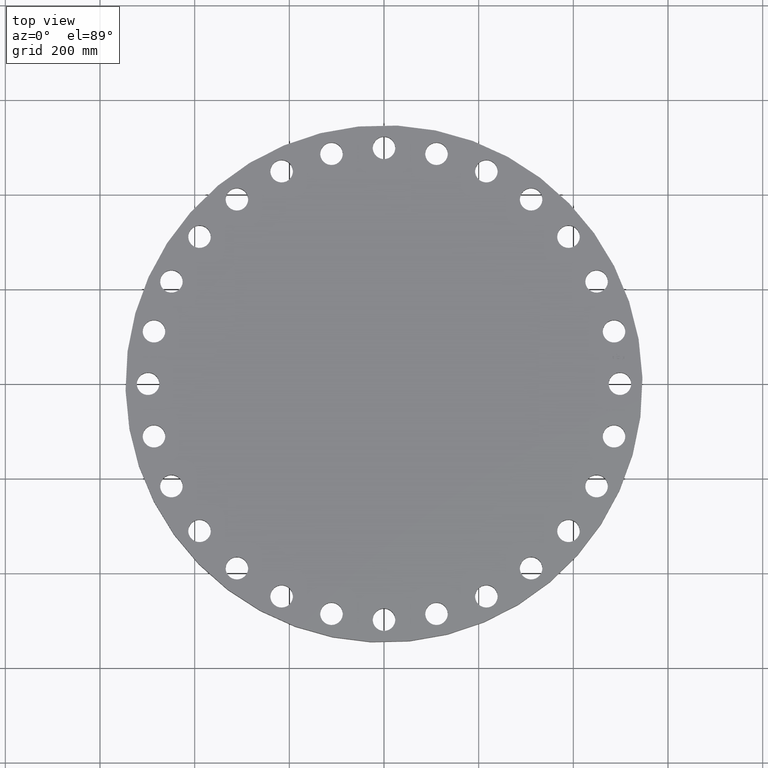
[diagram: clean part render]
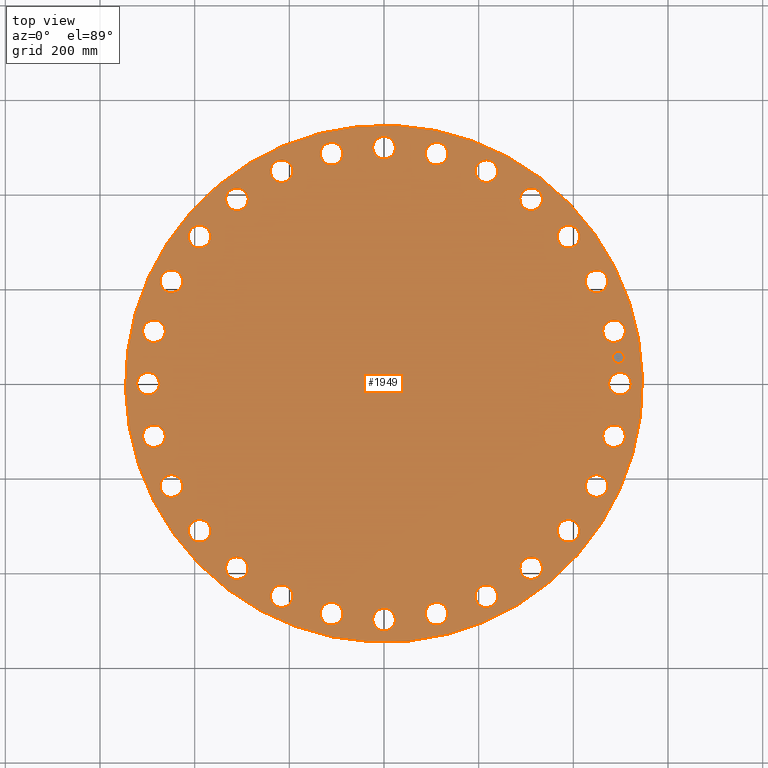
[diagram: same view with one face highlighted and labeled with its STEP entity id]
A machine part, top view. The second image highlights one B-rep face of the part: STEP entity #1949.
In plain terms, the highlighted planar face has unit normal (0, 0, -1).
Its self-contained STEP definition (entity closure, byte-faithful):
#65=AXIS2_PLACEMENT_3D('Circle Axis2P3D',#63,#64,$) ;
#82=AXIS2_PLACEMENT_3D('Circle Axis2P3D',#80,#81,$) ;
#115=AXIS2_PLACEMENT_3D('Circle Axis2P3D',#113,#114,$) ;
#139=AXIS2_PLACEMENT_3D('Circle Axis2P3D',#137,#138,$) ;
#670=AXIS2_PLACEMENT_3D('Circle Axis2P3D',#668,#669,$) ;
#682=AXIS2_PLACEMENT_3D('Circle Axis2P3D',#680,#681,$) ;
#713=AXIS2_PLACEMENT_3D('Circle Axis2P3D',#711,#712,$) ;
#725=AXIS2_PLACEMENT_3D('Circle Axis2P3D',#723,#724,$) ;
#756=AXIS2_PLACEMENT_3D('Circle Axis2P3D',#754,#755,$) ;
#768=AXIS2_PLACEMENT_3D('Circle Axis2P3D',#766,#767,$) ;
#799=AXIS2_PLACEMENT_3D('Circle Axis2P3D',#797,#798,$) ;
#811=AXIS2_PLACEMENT_3D('Circle Axis2P3D',#809,#810,$) ;
#842=AXIS2_PLACEMENT_3D('Circle Axis2P3D',#840,#841,$) ;
#854=AXIS2_PLACEMENT_3D('Circle Axis2P3D',#852,#853,$) ;
#885=AXIS2_PLACEMENT_3D('Circle Axis2P3D',#883,#884,$) ;
#897=AXIS2_PLACEMENT_3D('Circle Axis2P3D',#895,#896,$) ;
#928=AXIS2_PLACEMENT_3D('Circle Axis2P3D',#926,#927,$) ;
#940=AXIS2_PLACEMENT_3D('Circle Axis2P3D',#938,#939,$) ;
#971=AXIS2_PLACEMENT_3D('Circle Axis2P3D',#969,#970,$) ;
#983=AXIS2_PLACEMENT_3D('Circle Axis2P3D',#981,#982,$) ;
#1014=AXIS2_PLACEMENT_3D('Circle Axis2P3D',#1012,#1013,$) ;
#1026=AXIS2_PLACEMENT_3D('Circle Axis2P3D',#1024,#1025,$) ;
#1057=AXIS2_PLACEMENT_3D('Circle Axis2P3D',#1055,#1056,$) ;
#1069=AXIS2_PLACEMENT_3D('Circle Axis2P3D',#1067,#1068,$) ;
#1100=AXIS2_PLACEMENT_3D('Circle Axis2P3D',#1098,#1099,$) ;
#1112=AXIS2_PLACEMENT_3D('Circle Axis2P3D',#1110,#1111,$) ;
#1143=AXIS2_PLACEMENT_3D('Circle Axis2P3D',#1141,#1142,$) ;
#1155=AXIS2_PLACEMENT_3D('Circle Axis2P3D',#1153,#1154,$) ;
#1186=AXIS2_PLACEMENT_3D('Circle Axis2P3D',#1184,#1185,$) ;
#1198=AXIS2_PLACEMENT_3D('Circle Axis2P3D',#1196,#1197,$) ;
#1229=AXIS2_PLACEMENT_3D('Circle Axis2P3D',#1227,#1228,$) ;
#1241=AXIS2_PLACEMENT_3D('Circle Axis2P3D',#1239,#1240,$) ;
#1272=AXIS2_PLACEMENT_3D('Circle Axis2P3D',#1270,#1271,$) ;
#1284=AXIS2_PLACEMENT_3D('Circle Axis2P3D',#1282,#1283,$) ;
#1315=AXIS2_PLACEMENT_3D('Circle Axis2P3D',#1313,#1314,$) ;
#1327=AXIS2_PLACEMENT_3D('Circle Axis2P3D',#1325,#1326,$) ;
#1358=AXIS2_PLACEMENT_3D('Circle Axis2P3D',#1356,#1357,$) ;
#1370=AXIS2_PLACEMENT_3D('Circle Axis2P3D',#1368,#1369,$) ;
#1401=AXIS2_PLACEMENT_3D('Circle Axis2P3D',#1399,#1400,$) ;
#1413=AXIS2_PLACEMENT_3D('Circle Axis2P3D',#1411,#1412,$) ;
#1444=AXIS2_PLACEMENT_3D('Circle Axis2P3D',#1442,#1443,$) ;
#1456=AXIS2_PLACEMENT_3D('Circle Axis2P3D',#1454,#1455,$) ;
#1487=AXIS2_PLACEMENT_3D('Circle Axis2P3D',#1485,#1486,$) ;
#1499=AXIS2_PLACEMENT_3D('Circle Axis2P3D',#1497,#1498,$) ;
#1530=AXIS2_PLACEMENT_3D('Circle Axis2P3D',#1528,#1529,$) ;
#1542=AXIS2_PLACEMENT_3D('Circle Axis2P3D',#1540,#1541,$) ;
#1573=AXIS2_PLACEMENT_3D('Circle Axis2P3D',#1571,#1572,$) ;
#1585=AXIS2_PLACEMENT_3D('Circle Axis2P3D',#1583,#1584,$) ;
#1616=AXIS2_PLACEMENT_3D('Circle Axis2P3D',#1614,#1615,$) ;
#1628=AXIS2_PLACEMENT_3D('Circle Axis2P3D',#1626,#1627,$) ;
#1659=AXIS2_PLACEMENT_3D('Circle Axis2P3D',#1657,#1658,$) ;
#1671=AXIS2_PLACEMENT_3D('Circle Axis2P3D',#1669,#1670,$) ;
#1702=AXIS2_PLACEMENT_3D('Circle Axis2P3D',#1700,#1701,$) ;
#1714=AXIS2_PLACEMENT_3D('Circle Axis2P3D',#1712,#1713,$) ;
#1745=AXIS2_PLACEMENT_3D('Circle Axis2P3D',#1743,#1744,$) ;
#1757=AXIS2_PLACEMENT_3D('Circle Axis2P3D',#1755,#1756,$) ;
#1788=AXIS2_PLACEMENT_3D('Circle Axis2P3D',#1786,#1787,$) ;
#1800=AXIS2_PLACEMENT_3D('Circle Axis2P3D',#1798,#1799,$) ;
#1813=AXIS2_PLACEMENT_3D('Plane Axis2P3D',#1810,#1811,#1812) ;
#1933=AXIS2_PLACEMENT_3D('Circle Axis2P3D',#1931,#1932,$) ;
#1942=AXIS2_PLACEMENT_3D('Circle Axis2P3D',#1940,#1941,$) ;
#46=CARTESIAN_POINT('Vertex',(18.8000723919,0.45066000629,3.00000000001)) ;
#60=CARTESIAN_POINT('Vertex',(20.4499276083,-0.45066000629,3.00000000001)) ;
#63=CARTESIAN_POINT('Axis2P3D Location',(19.6250000001,0.,3.00000000001)) ;
#80=CARTESIAN_POINT('Axis2P3D Location',(19.6250000001,0.,3.00000000001)) ;
#110=CARTESIAN_POINT('Vertex',(10.30764908,18.8680250807,3.00000000001)) ;
#113=CARTESIAN_POINT('Axis2P3D Location',(0.,0.,3.00000000001)) ;
#117=CARTESIAN_POINT('Vertex',(-10.30764908,-18.8680250807,3.00000000001)) ;
#137=CARTESIAN_POINT('Axis2P3D Location',(0.,0.,3.00000000001)) ;
#658=CARTESIAN_POINT('Vertex',(-18.4289966114,3.74404864806,3.00000000001)) ;
#665=CARTESIAN_POINT('Vertex',(-19.8369239419,4.98989800976,3.00000000001)) ;
#668=CARTESIAN_POINT('Axis2P3D Location',(-19.1329602766,4.36697332891,3.00000000001)) ;
#680=CARTESIAN_POINT('Axis2P3D Location',(-19.1329602766,4.36697332891,3.00000000001)) ;
#701=CARTESIAN_POINT('Vertex',(17.133813988,-7.7510150694,3.00000000001)) ;
#708=CARTESIAN_POINT('Vertex',(18.2292140773,-9.27892169103,3.00000000001)) ;
#711=CARTESIAN_POINT('Axis2P3D Location',(17.6815140327,-8.51496838022,3.00000000001)) ;
#723=CARTESIAN_POINT('Axis2P3D Location',(17.6815140327,-8.51496838022,3.00000000001)) ;
#744=CARTESIAN_POINT('Vertex',(-17.133813988,7.7510150694,3.00000000001)) ;
#751=CARTESIAN_POINT('Vertex',(-18.2292140773,9.27892169103,3.00000000001)) ;
#754=CARTESIAN_POINT('Axis2P3D Location',(-17.6815140327,8.51496838022,3.00000000001)) ;
#766=CARTESIAN_POINT('Axis2P3D Location',(-17.6815140327,8.51496838022,3.00000000001)) ;
#787=CARTESIAN_POINT('Vertex',(14.9794703867,-11.3693132297,3.00000000001)) ;
#794=CARTESIAN_POINT('Vertex',(15.7074153003,-13.1026614933,3.00000000001)) ;
#797=CARTESIAN_POINT('Axis2P3D Location',(15.3434428435,-12.2359873615,3.00000000001)) ;
#809=CARTESIAN_POINT('Axis2P3D Location',(15.3434428435,-12.2359873615,3.00000000001)) ;
#830=CARTESIAN_POINT('Vertex',(-14.9794703867,11.3693132297,3.00000000001)) ;
#837=CARTESIAN_POINT('Vertex',(-15.7074153003,13.1026614933,3.00000000001)) ;
#840=CARTESIAN_POINT('Axis2P3D Location',(-15.3434428435,12.2359873615,3.00000000001)) ;
#852=CARTESIAN_POINT('Axis2P3D Location',(-15.3434428435,12.2359873615,3.00000000001)) ;
#873=CARTESIAN_POINT('Vertex',(12.0739935914,-14.4175065506,3.00000000001)) ;
#880=CARTESIAN_POINT('Vertex',(12.3979811317,-16.2693791364,3.00000000001)) ;
#883=CARTESIAN_POINT('Axis2P3D Location',(12.2359873615,-15.3434428435,3.00000000001)) ;
#895=CARTESIAN_POINT('Axis2P3D Location',(12.2359873615,-15.3434428435,3.00000000001)) ;
#916=CARTESIAN_POINT('Vertex',(-12.0739935914,14.4175065506,3.00000000001)) ;
#923=CARTESIAN_POINT('Vertex',(-12.3979811317,16.2693791364,3.00000000001)) ;
#926=CARTESIAN_POINT('Axis2P3D Location',(-12.2359873615,15.3434428435,3.00000000001)) ;
#938=CARTESIAN_POINT('Axis2P3D Location',(-12.2359873615,15.3434428435,3.00000000001)) ;
#959=CARTESIAN_POINT('Vertex',(8.56307634075,-16.7427458908,3.00000000001)) ;
#966=CARTESIAN_POINT('Vertex',(8.46686041968,-18.6202821745,3.00000000001)) ;
#969=CARTESIAN_POINT('Axis2P3D Location',(8.51496838022,-17.6815140327,3.00000000001)) ;
#981=CARTESIAN_POINT('Axis2P3D Location',(8.51496838022,-17.6815140327,3.00000000001)) ;
#1002=CARTESIAN_POINT('Vertex',(-8.56307634075,16.7427458908,3.00000000001)) ;
#1009=CARTESIAN_POINT('Vertex',(-8.46686041968,18.6202821745,3.00000000001)) ;
#1012=CARTESIAN_POINT('Axis2P3D Location',(-8.51496838022,17.6815140327,3.00000000001)) ;
#1024=CARTESIAN_POINT('Axis2P3D Location',(-8.51496838022,17.6815140327,3.00000000001)) ;
#1045=CARTESIAN_POINT('Vertex',(4.62277068613,-18.2284340404,3.00000000001)) ;
#1052=CARTESIAN_POINT('Vertex',(4.11117597169,-20.0374865129,3.00000000001)) ;
#1055=CARTESIAN_POINT('Axis2P3D Location',(4.36697332891,-19.1329602766,3.00000000001)) ;
#1067=CARTESIAN_POINT('Axis2P3D Location',(4.36697332891,-19.1329602766,3.00000000001)) ;
#1088=CARTESIAN_POINT('Vertex',(-4.62277068613,18.2284340404,3.00000000001)) ;
#1095=CARTESIAN_POINT('Vertex',(-4.11117597169,20.0374865129,3.00000000001)) ;
#1098=CARTESIAN_POINT('Axis2P3D Location',(-4.36697332891,19.1329602766,3.00000000001)) ;
#1110=CARTESIAN_POINT('Axis2P3D Location',(-4.36697332891,19.1329602766,3.00000000001)) ;
#1131=CARTESIAN_POINT('Vertex',(0.45066000629,-18.8000723919,3.00000000001)) ;
#1138=CARTESIAN_POINT('Vertex',(-0.45066000629,-20.4499276083,3.00000000001)) ;
#1141=CARTESIAN_POINT('Axis2P3D Location',(3.32138016693E-015,-19.6250000001,3.00000000001)) ;
#1153=CARTESIAN_POINT('Axis2P3D Location',(3.32138016693E-015,-19.6250000001,3.00000000001)) ;
#1174=CARTESIAN_POINT('Vertex',(-0.45066000629,18.8000723919,3.00000000001)) ;
#1181=CARTESIAN_POINT('Vertex',(0.45066000629,20.4499276083,3.00000000001)) ;
#1184=CARTESIAN_POINT('Axis2P3D Location',(-3.605054015E-015,19.6250000001,3.00000000001)) ;
#1196=CARTESIAN_POINT('Axis2P3D Location',(-3.605054015E-015,19.6250000001,3.00000000001)) ;
#1217=CARTESIAN_POINT('Vertex',(-3.74404864806,-18.4289966114,3.00000000001)) ;
#1224=CARTESIAN_POINT('Vertex',(-4.98989800976,-19.8369239419,3.00000000001)) ;
#1227=CARTESIAN_POINT('Axis2P3D Location',(-4.36697332891,-19.1329602766,3.00000000001)) ;
#1239=CARTESIAN_POINT('Axis2P3D Location',(-4.36697332891,-19.1329602766,3.00000000001)) ;
#1260=CARTESIAN_POINT('Vertex',(3.74404864806,18.4289966114,3.00000000001)) ;
#1267=CARTESIAN_POINT('Vertex',(4.98989800976,19.8369239419,3.00000000001)) ;
#1270=CARTESIAN_POINT('Axis2P3D Location',(4.36697332891,19.1329602766,3.00000000001)) ;
#1282=CARTESIAN_POINT('Axis2P3D Location',(4.36697332891,19.1329602766,3.00000000001)) ;
#1303=CARTESIAN_POINT('Vertex',(-7.7510150694,-17.133813988,3.00000000001)) ;
#1310=CARTESIAN_POINT('Vertex',(-9.27892169103,-18.2292140773,3.00000000001)) ;
#1313=CARTESIAN_POINT('Axis2P3D Location',(-8.51496838022,-17.6815140327,3.00000000001)) ;
#1325=CARTESIAN_POINT('Axis2P3D Location',(-8.51496838022,-17.6815140327,3.00000000001)) ;
#1346=CARTESIAN_POINT('Vertex',(7.7510150694,17.133813988,3.00000000001)) ;
#1353=CARTESIAN_POINT('Vertex',(9.27892169103,18.2292140773,3.00000000001)) ;
#1356=CARTESIAN_POINT('Axis2P3D Location',(8.51496838022,17.6815140327,3.00000000001)) ;
#1368=CARTESIAN_POINT('Axis2P3D Location',(8.51496838022,17.6815140327,3.00000000001)) ;
#1389=CARTESIAN_POINT('Vertex',(-11.3693132297,-14.9794703867,3.00000000001)) ;
#1396=CARTESIAN_POINT('Vertex',(-13.1026614933,-15.7074153003,3.00000000001)) ;
#1399=CARTESIAN_POINT('Axis2P3D Location',(-12.2359873615,-15.3434428435,3.00000000001)) ;
#1411=CARTESIAN_POINT('Axis2P3D Location',(-12.2359873615,-15.3434428435,3.00000000001)) ;
#1432=CARTESIAN_POINT('Vertex',(11.3693132297,14.9794703867,3.00000000001)) ;
#1439=CARTESIAN_POINT('Vertex',(13.1026614933,15.7074153003,3.00000000001)) ;
#1442=CARTESIAN_POINT('Axis2P3D Location',(12.2359873615,15.3434428435,3.00000000001)) ;
#1454=CARTESIAN_POINT('Axis2P3D Location',(12.2359873615,15.3434428435,3.00000000001)) ;
#1475=CARTESIAN_POINT('Vertex',(-14.4175065506,-12.0739935914,3.00000000001)) ;
#1482=CARTESIAN_POINT('Vertex',(-16.2693791364,-12.3979811317,3.00000000001)) ;
#1485=CARTESIAN_POINT('Axis2P3D Location',(-15.3434428435,-12.2359873615,3.00000000001)) ;
#1497=CARTESIAN_POINT('Axis2P3D Location',(-15.3434428435,-12.2359873615,3.00000000001)) ;
#1518=CARTESIAN_POINT('Vertex',(14.4175065506,12.0739935914,3.00000000001)) ;
#1525=CARTESIAN_POINT('Vertex',(16.2693791364,12.3979811317,3.00000000001)) ;
#1528=CARTESIAN_POINT('Axis2P3D Location',(15.3434428435,12.2359873615,3.00000000001)) ;
#1540=CARTESIAN_POINT('Axis2P3D Location',(15.3434428435,12.2359873615,3.00000000001)) ;
#1561=CARTESIAN_POINT('Vertex',(-16.7427458908,-8.56307634075,3.00000000001)) ;
#1568=CARTESIAN_POINT('Vertex',(-18.6202821745,-8.46686041968,3.00000000001)) ;
#1571=CARTESIAN_POINT('Axis2P3D Location',(-17.6815140327,-8.51496838022,3.00000000001)) ;
#1583=CARTESIAN_POINT('Axis2P3D Location',(-17.6815140327,-8.51496838022,3.00000000001)) ;
#1604=CARTESIAN_POINT('Vertex',(16.7427458908,8.56307634075,3.00000000001)) ;
#1611=CARTESIAN_POINT('Vertex',(18.6202821745,8.46686041968,3.00000000001)) ;
#1614=CARTESIAN_POINT('Axis2P3D Location',(17.6815140327,8.51496838022,3.00000000001)) ;
#1626=CARTESIAN_POINT('Axis2P3D Location',(17.6815140327,8.51496838022,3.00000000001)) ;
#1647=CARTESIAN_POINT('Vertex',(-18.2284340404,-4.62277068613,3.00000000001)) ;
#1654=CARTESIAN_POINT('Vertex',(-20.0374865129,-4.11117597169,3.00000000001)) ;
#1657=CARTESIAN_POINT('Axis2P3D Location',(-19.1329602766,-4.36697332891,3.00000000001)) ;
#1669=CARTESIAN_POINT('Axis2P3D Location',(-19.1329602766,-4.36697332891,3.00000000001)) ;
#1690=CARTESIAN_POINT('Vertex',(18.2284340404,4.62277068613,3.00000000001)) ;
#1697=CARTESIAN_POINT('Vertex',(20.0374865129,4.11117597169,3.00000000001)) ;
#1700=CARTESIAN_POINT('Axis2P3D Location',(19.1329602766,4.36697332891,3.00000000001)) ;
#1712=CARTESIAN_POINT('Axis2P3D Location',(19.1329602766,4.36697332891,3.00000000001)) ;
#1733=CARTESIAN_POINT('Vertex',(-18.8000723919,-0.45066000629,3.00000000001)) ;
#1740=CARTESIAN_POINT('Vertex',(-20.4499276083,0.45066000629,3.00000000001)) ;
#1743=CARTESIAN_POINT('Axis2P3D Location',(-19.6250000001,-1.11186200867E-014,3.00000000001)) ;
#1755=CARTESIAN_POINT('Axis2P3D Location',(-19.6250000001,-1.11186200867E-014,3.00000000001)) ;
#1776=CARTESIAN_POINT('Vertex',(18.4289966114,-3.74404864806,3.00000000001)) ;
#1783=CARTESIAN_POINT('Vertex',(19.8369239419,-4.98989800976,3.00000000001)) ;
#1786=CARTESIAN_POINT('Axis2P3D Location',(19.1329602766,-4.36697332891,3.00000000001)) ;
#1798=CARTESIAN_POINT('Axis2P3D Location',(19.1329602766,-4.36697332891,3.00000000001)) ;
#1810=CARTESIAN_POINT('Axis2P3D Location',(0.,21.5000000001,3.00000000001)) ;
#1931=CARTESIAN_POINT('Axis2P3D Location',(19.5016021192,2.19730284354,3.00000000001)) ;
#1935=CARTESIAN_POINT('Vertex',(19.4456198812,2.69415894848,3.00000000001)) ;
#1937=CARTESIAN_POINT('Vertex',(19.5575843573,1.70044673859,3.00000000001)) ;
#1940=CARTESIAN_POINT('Axis2P3D Location',(19.5016021192,2.19730284354,3.00000000001)) ;
#64=DIRECTION('Axis2P3D Direction',(0.,-0.,-0.0393700787402)) ;
#81=DIRECTION('Axis2P3D Direction',(0.,-0.,-0.0393700787402)) ;
#114=DIRECTION('Axis2P3D Direction',(0.,0.,-0.0393700787402)) ;
#138=DIRECTION('Axis2P3D Direction',(0.,0.,-0.0393700787402)) ;
#669=DIRECTION('Axis2P3D Direction',(0.,0.,-0.0393700787402)) ;
#681=DIRECTION('Axis2P3D Direction',(0.,0.,-0.0393700787402)) ;
#712=DIRECTION('Axis2P3D Direction',(0.,-0.,-0.0393700787402)) ;
#724=DIRECTION('Axis2P3D Direction',(0.,-0.,-0.0393700787402)) ;
#755=DIRECTION('Axis2P3D Direction',(0.,0.,-0.0393700787402)) ;
#767=DIRECTION('Axis2P3D Direction',(0.,0.,-0.0393700787402)) ;
#798=DIRECTION('Axis2P3D Direction',(0.,-0.,-0.0393700787402)) ;
#810=DIRECTION('Axis2P3D Direction',(0.,-0.,-0.0393700787402)) ;
#841=DIRECTION('Axis2P3D Direction',(0.,0.,-0.0393700787402)) ;
#853=DIRECTION('Axis2P3D Direction',(0.,0.,-0.0393700787402)) ;
#884=DIRECTION('Axis2P3D Direction',(0.,-0.,-0.0393700787402)) ;
#896=DIRECTION('Axis2P3D Direction',(0.,-0.,-0.0393700787402)) ;
#927=DIRECTION('Axis2P3D Direction',(0.,0.,-0.0393700787402)) ;
#939=DIRECTION('Axis2P3D Direction',(0.,0.,-0.0393700787402)) ;
#970=DIRECTION('Axis2P3D Direction',(0.,-0.,-0.0393700787402)) ;
#982=DIRECTION('Axis2P3D Direction',(0.,-0.,-0.0393700787402)) ;
#1013=DIRECTION('Axis2P3D Direction',(0.,0.,-0.0393700787402)) ;
#1025=DIRECTION('Axis2P3D Direction',(0.,0.,-0.0393700787402)) ;
#1056=DIRECTION('Axis2P3D Direction',(0.,-0.,-0.0393700787402)) ;
#1068=DIRECTION('Axis2P3D Direction',(0.,-0.,-0.0393700787402)) ;
#1099=DIRECTION('Axis2P3D Direction',(0.,0.,-0.0393700787402)) ;
#1111=DIRECTION('Axis2P3D Direction',(0.,0.,-0.0393700787402)) ;
#1142=DIRECTION('Axis2P3D Direction',(0.,-0.,-0.0393700787402)) ;
#1154=DIRECTION('Axis2P3D Direction',(0.,-0.,-0.0393700787402)) ;
#1185=DIRECTION('Axis2P3D Direction',(0.,0.,-0.0393700787402)) ;
#1197=DIRECTION('Axis2P3D Direction',(0.,0.,-0.0393700787402)) ;
#1228=DIRECTION('Axis2P3D Direction',(-0.,0.,-0.0393700787402)) ;
#1240=DIRECTION('Axis2P3D Direction',(-0.,0.,-0.0393700787402)) ;
#1271=DIRECTION('Axis2P3D Direction',(0.,0.,-0.0393700787402)) ;
#1283=DIRECTION('Axis2P3D Direction',(0.,0.,-0.0393700787402)) ;
#1314=DIRECTION('Axis2P3D Direction',(-0.,0.,-0.0393700787402)) ;
#1326=DIRECTION('Axis2P3D Direction',(-0.,0.,-0.0393700787402)) ;
#1357=DIRECTION('Axis2P3D Direction',(0.,0.,-0.0393700787402)) ;
#1369=DIRECTION('Axis2P3D Direction',(0.,0.,-0.0393700787402)) ;
#1400=DIRECTION('Axis2P3D Direction',(-0.,0.,-0.0393700787402)) ;
#1412=DIRECTION('Axis2P3D Direction',(-0.,0.,-0.0393700787402)) ;
#1443=DIRECTION('Axis2P3D Direction',(0.,0.,-0.0393700787402)) ;
#1455=DIRECTION('Axis2P3D Direction',(0.,0.,-0.0393700787402)) ;
#1486=DIRECTION('Axis2P3D Direction',(-0.,0.,-0.0393700787402)) ;
#1498=DIRECTION('Axis2P3D Direction',(-0.,0.,-0.0393700787402)) ;
#1529=DIRECTION('Axis2P3D Direction',(0.,0.,-0.0393700787402)) ;
#1541=DIRECTION('Axis2P3D Direction',(0.,0.,-0.0393700787402)) ;
#1572=DIRECTION('Axis2P3D Direction',(-0.,0.,-0.0393700787402)) ;
#1584=DIRECTION('Axis2P3D Direction',(-0.,0.,-0.0393700787402)) ;
#1615=DIRECTION('Axis2P3D Direction',(0.,0.,-0.0393700787402)) ;
#1627=DIRECTION('Axis2P3D Direction',(0.,0.,-0.0393700787402)) ;
#1658=DIRECTION('Axis2P3D Direction',(-0.,0.,-0.0393700787402)) ;
#1670=DIRECTION('Axis2P3D Direction',(-0.,0.,-0.0393700787402)) ;
#1701=DIRECTION('Axis2P3D Direction',(0.,0.,-0.0393700787402)) ;
#1713=DIRECTION('Axis2P3D Direction',(0.,0.,-0.0393700787402)) ;
#1744=DIRECTION('Axis2P3D Direction',(-0.,0.,-0.0393700787402)) ;
#1756=DIRECTION('Axis2P3D Direction',(-0.,0.,-0.0393700787402)) ;
#1787=DIRECTION('Axis2P3D Direction',(0.,-0.,-0.0393700787402)) ;
#1799=DIRECTION('Axis2P3D Direction',(0.,-0.,-0.0393700787402)) ;
#1811=DIRECTION('Axis2P3D Direction',(0.,0.,-0.0393700787402)) ;
#1812=DIRECTION('Axis2P3D XDirection',(0.0393700787402,0.,0.)) ;
#1932=DIRECTION('Axis2P3D Direction',(0.,0.,-0.0393700787402)) ;
#1941=DIRECTION('Axis2P3D Direction',(0.,0.,-0.0393700787402)) ;
#1816=ORIENTED_EDGE('',*,*,#119,.F.) ;
#1817=ORIENTED_EDGE('',*,*,#141,.F.) ;
#1820=ORIENTED_EDGE('',*,*,#67,.T.) ;
#1821=ORIENTED_EDGE('',*,*,#84,.T.) ;
#1824=ORIENTED_EDGE('',*,*,#1802,.T.) ;
#1825=ORIENTED_EDGE('',*,*,#1790,.T.) ;
#1828=ORIENTED_EDGE('',*,*,#727,.T.) ;
#1829=ORIENTED_EDGE('',*,*,#715,.T.) ;
#1832=ORIENTED_EDGE('',*,*,#813,.T.) ;
#1833=ORIENTED_EDGE('',*,*,#801,.T.) ;
#1836=ORIENTED_EDGE('',*,*,#899,.T.) ;
#1837=ORIENTED_EDGE('',*,*,#887,.T.) ;
#1840=ORIENTED_EDGE('',*,*,#985,.T.) ;
#1841=ORIENTED_EDGE('',*,*,#973,.T.) ;
#1844=ORIENTED_EDGE('',*,*,#1071,.T.) ;
#1845=ORIENTED_EDGE('',*,*,#1059,.T.) ;
#1848=ORIENTED_EDGE('',*,*,#1157,.T.) ;
#1849=ORIENTED_EDGE('',*,*,#1145,.T.) ;
#1852=ORIENTED_EDGE('',*,*,#1243,.T.) ;
#1853=ORIENTED_EDGE('',*,*,#1231,.T.) ;
#1856=ORIENTED_EDGE('',*,*,#1329,.T.) ;
#1857=ORIENTED_EDGE('',*,*,#1317,.T.) ;
#1860=ORIENTED_EDGE('',*,*,#1415,.T.) ;
#1861=ORIENTED_EDGE('',*,*,#1403,.T.) ;
#1864=ORIENTED_EDGE('',*,*,#1501,.T.) ;
#1865=ORIENTED_EDGE('',*,*,#1489,.T.) ;
#1868=ORIENTED_EDGE('',*,*,#1587,.T.) ;
#1869=ORIENTED_EDGE('',*,*,#1575,.T.) ;
#1872=ORIENTED_EDGE('',*,*,#1673,.T.) ;
#1873=ORIENTED_EDGE('',*,*,#1661,.T.) ;
#1876=ORIENTED_EDGE('',*,*,#1759,.T.) ;
#1877=ORIENTED_EDGE('',*,*,#1747,.T.) ;
#1880=ORIENTED_EDGE('',*,*,#684,.T.) ;
#1881=ORIENTED_EDGE('',*,*,#672,.T.) ;
#1884=ORIENTED_EDGE('',*,*,#770,.T.) ;
#1885=ORIENTED_EDGE('',*,*,#758,.T.) ;
#1888=ORIENTED_EDGE('',*,*,#856,.T.) ;
#1889=ORIENTED_EDGE('',*,*,#844,.T.) ;
#1892=ORIENTED_EDGE('',*,*,#942,.T.) ;
#1893=ORIENTED_EDGE('',*,*,#930,.T.) ;
#1896=ORIENTED_EDGE('',*,*,#1028,.T.) ;
#1897=ORIENTED_EDGE('',*,*,#1016,.T.) ;
#1900=ORIENTED_EDGE('',*,*,#1114,.T.) ;
#1901=ORIENTED_EDGE('',*,*,#1102,.T.) ;
#1904=ORIENTED_EDGE('',*,*,#1200,.T.) ;
#1905=ORIENTED_EDGE('',*,*,#1188,.T.) ;
#1908=ORIENTED_EDGE('',*,*,#1286,.T.) ;
#1909=ORIENTED_EDGE('',*,*,#1274,.T.) ;
#1912=ORIENTED_EDGE('',*,*,#1372,.T.) ;
#1913=ORIENTED_EDGE('',*,*,#1360,.T.) ;
#1916=ORIENTED_EDGE('',*,*,#1458,.T.) ;
#1917=ORIENTED_EDGE('',*,*,#1446,.T.) ;
#1920=ORIENTED_EDGE('',*,*,#1544,.T.) ;
#1921=ORIENTED_EDGE('',*,*,#1532,.T.) ;
#1924=ORIENTED_EDGE('',*,*,#1630,.T.) ;
#1925=ORIENTED_EDGE('',*,*,#1618,.T.) ;
#1928=ORIENTED_EDGE('',*,*,#1716,.T.) ;
#1929=ORIENTED_EDGE('',*,*,#1704,.T.) ;
#1946=ORIENTED_EDGE('',*,*,#1939,.T.) ;
#1947=ORIENTED_EDGE('',*,*,#1944,.T.) ;
#1822=FACE_BOUND('',#1819,.T.) ;
#1826=FACE_BOUND('',#1823,.T.) ;
#1830=FACE_BOUND('',#1827,.T.) ;
#1834=FACE_BOUND('',#1831,.T.) ;
#1838=FACE_BOUND('',#1835,.T.) ;
#1842=FACE_BOUND('',#1839,.T.) ;
#1846=FACE_BOUND('',#1843,.T.) ;
#1850=FACE_BOUND('',#1847,.T.) ;
#1854=FACE_BOUND('',#1851,.T.) ;
#1858=FACE_BOUND('',#1855,.T.) ;
#1862=FACE_BOUND('',#1859,.T.) ;
#1866=FACE_BOUND('',#1863,.T.) ;
#1870=FACE_BOUND('',#1867,.T.) ;
#1874=FACE_BOUND('',#1871,.T.) ;
#1878=FACE_BOUND('',#1875,.T.) ;
#1882=FACE_BOUND('',#1879,.T.) ;
#1886=FACE_BOUND('',#1883,.T.) ;
#1890=FACE_BOUND('',#1887,.T.) ;
#1894=FACE_BOUND('',#1891,.T.) ;
#1898=FACE_BOUND('',#1895,.T.) ;
#1902=FACE_BOUND('',#1899,.T.) ;
#1906=FACE_BOUND('',#1903,.T.) ;
#1910=FACE_BOUND('',#1907,.T.) ;
#1914=FACE_BOUND('',#1911,.T.) ;
#1918=FACE_BOUND('',#1915,.T.) ;
#1922=FACE_BOUND('',#1919,.T.) ;
#1926=FACE_BOUND('',#1923,.T.) ;
#1930=FACE_BOUND('',#1927,.T.) ;
#1948=FACE_BOUND('',#1945,.T.) ;
#1949=ADVANCED_FACE('PartBody',(#1818,#1822,#1826,#1830,#1834,#1838,#1842,#1846,#1850,#1854,#1858,#1862,#1866,#1870,#1874,#1878,#1882,#1886,#1890,#1894,#1898,#1902,#1906,#1910,#1914,#1918,#1922,#1926,#1930,#1948),#1814,.F.) ;
#66=CIRCLE('generated circle',#65,0.940000000004) ;
#83=CIRCLE('generated circle',#82,0.940000000004) ;
#116=CIRCLE('generated circle',#115,21.5000000001) ;
#140=CIRCLE('generated circle',#139,21.5000000001) ;
#671=CIRCLE('generated circle',#670,0.940000000004) ;
#683=CIRCLE('generated circle',#682,0.940000000004) ;
#714=CIRCLE('generated circle',#713,0.940000000004) ;
#726=CIRCLE('generated circle',#725,0.940000000004) ;
#757=CIRCLE('generated circle',#756,0.940000000004) ;
#769=CIRCLE('generated circle',#768,0.940000000004) ;
#800=CIRCLE('generated circle',#799,0.940000000004) ;
#812=CIRCLE('generated circle',#811,0.940000000004) ;
#843=CIRCLE('generated circle',#842,0.940000000004) ;
#855=CIRCLE('generated circle',#854,0.940000000004) ;
#886=CIRCLE('generated circle',#885,0.940000000004) ;
#898=CIRCLE('generated circle',#897,0.940000000004) ;
#929=CIRCLE('generated circle',#928,0.940000000004) ;
#941=CIRCLE('generated circle',#940,0.940000000004) ;
#972=CIRCLE('generated circle',#971,0.940000000004) ;
#984=CIRCLE('generated circle',#983,0.940000000004) ;
#1015=CIRCLE('generated circle',#1014,0.940000000004) ;
#1027=CIRCLE('generated circle',#1026,0.940000000004) ;
#1058=CIRCLE('generated circle',#1057,0.940000000004) ;
#1070=CIRCLE('generated circle',#1069,0.940000000004) ;
#1101=CIRCLE('generated circle',#1100,0.940000000004) ;
#1113=CIRCLE('generated circle',#1112,0.940000000004) ;
#1144=CIRCLE('generated circle',#1143,0.940000000004) ;
#1156=CIRCLE('generated circle',#1155,0.940000000004) ;
#1187=CIRCLE('generated circle',#1186,0.940000000004) ;
#1199=CIRCLE('generated circle',#1198,0.940000000004) ;
#1230=CIRCLE('generated circle',#1229,0.940000000004) ;
#1242=CIRCLE('generated circle',#1241,0.940000000004) ;
#1273=CIRCLE('generated circle',#1272,0.940000000004) ;
#1285=CIRCLE('generated circle',#1284,0.940000000004) ;
#1316=CIRCLE('generated circle',#1315,0.940000000004) ;
#1328=CIRCLE('generated circle',#1327,0.940000000004) ;
#1359=CIRCLE('generated circle',#1358,0.940000000004) ;
#1371=CIRCLE('generated circle',#1370,0.940000000004) ;
#1402=CIRCLE('generated circle',#1401,0.940000000004) ;
#1414=CIRCLE('generated circle',#1413,0.940000000004) ;
#1445=CIRCLE('generated circle',#1444,0.940000000004) ;
#1457=CIRCLE('generated circle',#1456,0.940000000004) ;
#1488=CIRCLE('generated circle',#1487,0.940000000004) ;
#1500=CIRCLE('generated circle',#1499,0.940000000004) ;
#1531=CIRCLE('generated circle',#1530,0.940000000004) ;
#1543=CIRCLE('generated circle',#1542,0.940000000004) ;
#1574=CIRCLE('generated circle',#1573,0.940000000004) ;
#1586=CIRCLE('generated circle',#1585,0.940000000004) ;
#1617=CIRCLE('generated circle',#1616,0.940000000004) ;
#1629=CIRCLE('generated circle',#1628,0.940000000004) ;
#1660=CIRCLE('generated circle',#1659,0.940000000004) ;
#1672=CIRCLE('generated circle',#1671,0.940000000004) ;
#1703=CIRCLE('generated circle',#1702,0.940000000004) ;
#1715=CIRCLE('generated circle',#1714,0.940000000004) ;
#1746=CIRCLE('generated circle',#1745,0.940000000004) ;
#1758=CIRCLE('generated circle',#1757,0.940000000004) ;
#1789=CIRCLE('generated circle',#1788,0.940000000004) ;
#1801=CIRCLE('generated circle',#1800,0.940000000004) ;
#1934=CIRCLE('generated circle',#1933,0.500000000002) ;
#1943=CIRCLE('generated circle',#1942,0.500000000002) ;
#67=EDGE_CURVE('',#47,#61,#66,.T.) ;
#84=EDGE_CURVE('',#61,#47,#83,.T.) ;
#119=EDGE_CURVE('',#111,#118,#116,.T.) ;
#141=EDGE_CURVE('',#118,#111,#140,.T.) ;
#672=EDGE_CURVE('',#659,#666,#671,.T.) ;
#684=EDGE_CURVE('',#666,#659,#683,.T.) ;
#715=EDGE_CURVE('',#702,#709,#714,.T.) ;
#727=EDGE_CURVE('',#709,#702,#726,.T.) ;
#758=EDGE_CURVE('',#745,#752,#757,.T.) ;
#770=EDGE_CURVE('',#752,#745,#769,.T.) ;
#801=EDGE_CURVE('',#788,#795,#800,.T.) ;
#813=EDGE_CURVE('',#795,#788,#812,.T.) ;
#844=EDGE_CURVE('',#831,#838,#843,.T.) ;
#856=EDGE_CURVE('',#838,#831,#855,.T.) ;
#887=EDGE_CURVE('',#874,#881,#886,.T.) ;
#899=EDGE_CURVE('',#881,#874,#898,.T.) ;
#930=EDGE_CURVE('',#917,#924,#929,.T.) ;
#942=EDGE_CURVE('',#924,#917,#941,.T.) ;
#973=EDGE_CURVE('',#960,#967,#972,.T.) ;
#985=EDGE_CURVE('',#967,#960,#984,.T.) ;
#1016=EDGE_CURVE('',#1003,#1010,#1015,.T.) ;
#1028=EDGE_CURVE('',#1010,#1003,#1027,.T.) ;
#1059=EDGE_CURVE('',#1046,#1053,#1058,.T.) ;
#1071=EDGE_CURVE('',#1053,#1046,#1070,.T.) ;
#1102=EDGE_CURVE('',#1089,#1096,#1101,.T.) ;
#1114=EDGE_CURVE('',#1096,#1089,#1113,.T.) ;
#1145=EDGE_CURVE('',#1132,#1139,#1144,.T.) ;
#1157=EDGE_CURVE('',#1139,#1132,#1156,.T.) ;
#1188=EDGE_CURVE('',#1175,#1182,#1187,.T.) ;
#1200=EDGE_CURVE('',#1182,#1175,#1199,.T.) ;
#1231=EDGE_CURVE('',#1218,#1225,#1230,.T.) ;
#1243=EDGE_CURVE('',#1225,#1218,#1242,.T.) ;
#1274=EDGE_CURVE('',#1261,#1268,#1273,.T.) ;
#1286=EDGE_CURVE('',#1268,#1261,#1285,.T.) ;
#1317=EDGE_CURVE('',#1304,#1311,#1316,.T.) ;
#1329=EDGE_CURVE('',#1311,#1304,#1328,.T.) ;
#1360=EDGE_CURVE('',#1347,#1354,#1359,.T.) ;
#1372=EDGE_CURVE('',#1354,#1347,#1371,.T.) ;
#1403=EDGE_CURVE('',#1390,#1397,#1402,.T.) ;
#1415=EDGE_CURVE('',#1397,#1390,#1414,.T.) ;
#1446=EDGE_CURVE('',#1433,#1440,#1445,.T.) ;
#1458=EDGE_CURVE('',#1440,#1433,#1457,.T.) ;
#1489=EDGE_CURVE('',#1476,#1483,#1488,.T.) ;
#1501=EDGE_CURVE('',#1483,#1476,#1500,.T.) ;
#1532=EDGE_CURVE('',#1519,#1526,#1531,.T.) ;
#1544=EDGE_CURVE('',#1526,#1519,#1543,.T.) ;
#1575=EDGE_CURVE('',#1562,#1569,#1574,.T.) ;
#1587=EDGE_CURVE('',#1569,#1562,#1586,.T.) ;
#1618=EDGE_CURVE('',#1605,#1612,#1617,.T.) ;
#1630=EDGE_CURVE('',#1612,#1605,#1629,.T.) ;
#1661=EDGE_CURVE('',#1648,#1655,#1660,.T.) ;
#1673=EDGE_CURVE('',#1655,#1648,#1672,.T.) ;
#1704=EDGE_CURVE('',#1691,#1698,#1703,.T.) ;
#1716=EDGE_CURVE('',#1698,#1691,#1715,.T.) ;
#1747=EDGE_CURVE('',#1734,#1741,#1746,.T.) ;
#1759=EDGE_CURVE('',#1741,#1734,#1758,.T.) ;
#1790=EDGE_CURVE('',#1777,#1784,#1789,.T.) ;
#1802=EDGE_CURVE('',#1784,#1777,#1801,.T.) ;
#1939=EDGE_CURVE('',#1936,#1938,#1934,.T.) ;
#1944=EDGE_CURVE('',#1938,#1936,#1943,.T.) ;
#1815=EDGE_LOOP('',(#1816,#1817)) ;
#1819=EDGE_LOOP('',(#1820,#1821)) ;
#1823=EDGE_LOOP('',(#1824,#1825)) ;
#1827=EDGE_LOOP('',(#1828,#1829)) ;
#1831=EDGE_LOOP('',(#1832,#1833)) ;
#1835=EDGE_LOOP('',(#1836,#1837)) ;
#1839=EDGE_LOOP('',(#1840,#1841)) ;
#1843=EDGE_LOOP('',(#1844,#1845)) ;
#1847=EDGE_LOOP('',(#1848,#1849)) ;
#1851=EDGE_LOOP('',(#1852,#1853)) ;
#1855=EDGE_LOOP('',(#1856,#1857)) ;
#1859=EDGE_LOOP('',(#1860,#1861)) ;
#1863=EDGE_LOOP('',(#1864,#1865)) ;
#1867=EDGE_LOOP('',(#1868,#1869)) ;
#1871=EDGE_LOOP('',(#1872,#1873)) ;
#1875=EDGE_LOOP('',(#1876,#1877)) ;
#1879=EDGE_LOOP('',(#1880,#1881)) ;
#1883=EDGE_LOOP('',(#1884,#1885)) ;
#1887=EDGE_LOOP('',(#1888,#1889)) ;
#1891=EDGE_LOOP('',(#1892,#1893)) ;
#1895=EDGE_LOOP('',(#1896,#1897)) ;
#1899=EDGE_LOOP('',(#1900,#1901)) ;
#1903=EDGE_LOOP('',(#1904,#1905)) ;
#1907=EDGE_LOOP('',(#1908,#1909)) ;
#1911=EDGE_LOOP('',(#1912,#1913)) ;
#1915=EDGE_LOOP('',(#1916,#1917)) ;
#1919=EDGE_LOOP('',(#1920,#1921)) ;
#1923=EDGE_LOOP('',(#1924,#1925)) ;
#1927=EDGE_LOOP('',(#1928,#1929)) ;
#1945=EDGE_LOOP('',(#1946,#1947)) ;
#1818=FACE_OUTER_BOUND('',#1815,.T.) ;
#1814=PLANE('',#1813) ;
#47=VERTEX_POINT('',#46) ;
#61=VERTEX_POINT('',#60) ;
#111=VERTEX_POINT('',#110) ;
#118=VERTEX_POINT('',#117) ;
#659=VERTEX_POINT('',#658) ;
#666=VERTEX_POINT('',#665) ;
#702=VERTEX_POINT('',#701) ;
#709=VERTEX_POINT('',#708) ;
#745=VERTEX_POINT('',#744) ;
#752=VERTEX_POINT('',#751) ;
#788=VERTEX_POINT('',#787) ;
#795=VERTEX_POINT('',#794) ;
#831=VERTEX_POINT('',#830) ;
#838=VERTEX_POINT('',#837) ;
#874=VERTEX_POINT('',#873) ;
#881=VERTEX_POINT('',#880) ;
#917=VERTEX_POINT('',#916) ;
#924=VERTEX_POINT('',#923) ;
#960=VERTEX_POINT('',#959) ;
#967=VERTEX_POINT('',#966) ;
#1003=VERTEX_POINT('',#1002) ;
#1010=VERTEX_POINT('',#1009) ;
#1046=VERTEX_POINT('',#1045) ;
#1053=VERTEX_POINT('',#1052) ;
#1089=VERTEX_POINT('',#1088) ;
#1096=VERTEX_POINT('',#1095) ;
#1132=VERTEX_POINT('',#1131) ;
#1139=VERTEX_POINT('',#1138) ;
#1175=VERTEX_POINT('',#1174) ;
#1182=VERTEX_POINT('',#1181) ;
#1218=VERTEX_POINT('',#1217) ;
#1225=VERTEX_POINT('',#1224) ;
#1261=VERTEX_POINT('',#1260) ;
#1268=VERTEX_POINT('',#1267) ;
#1304=VERTEX_POINT('',#1303) ;
#1311=VERTEX_POINT('',#1310) ;
#1347=VERTEX_POINT('',#1346) ;
#1354=VERTEX_POINT('',#1353) ;
#1390=VERTEX_POINT('',#1389) ;
#1397=VERTEX_POINT('',#1396) ;
#1433=VERTEX_POINT('',#1432) ;
#1440=VERTEX_POINT('',#1439) ;
#1476=VERTEX_POINT('',#1475) ;
#1483=VERTEX_POINT('',#1482) ;
#1519=VERTEX_POINT('',#1518) ;
#1526=VERTEX_POINT('',#1525) ;
#1562=VERTEX_POINT('',#1561) ;
#1569=VERTEX_POINT('',#1568) ;
#1605=VERTEX_POINT('',#1604) ;
#1612=VERTEX_POINT('',#1611) ;
#1648=VERTEX_POINT('',#1647) ;
#1655=VERTEX_POINT('',#1654) ;
#1691=VERTEX_POINT('',#1690) ;
#1698=VERTEX_POINT('',#1697) ;
#1734=VERTEX_POINT('',#1733) ;
#1741=VERTEX_POINT('',#1740) ;
#1777=VERTEX_POINT('',#1776) ;
#1784=VERTEX_POINT('',#1783) ;
#1936=VERTEX_POINT('',#1935) ;
#1938=VERTEX_POINT('',#1937) ;